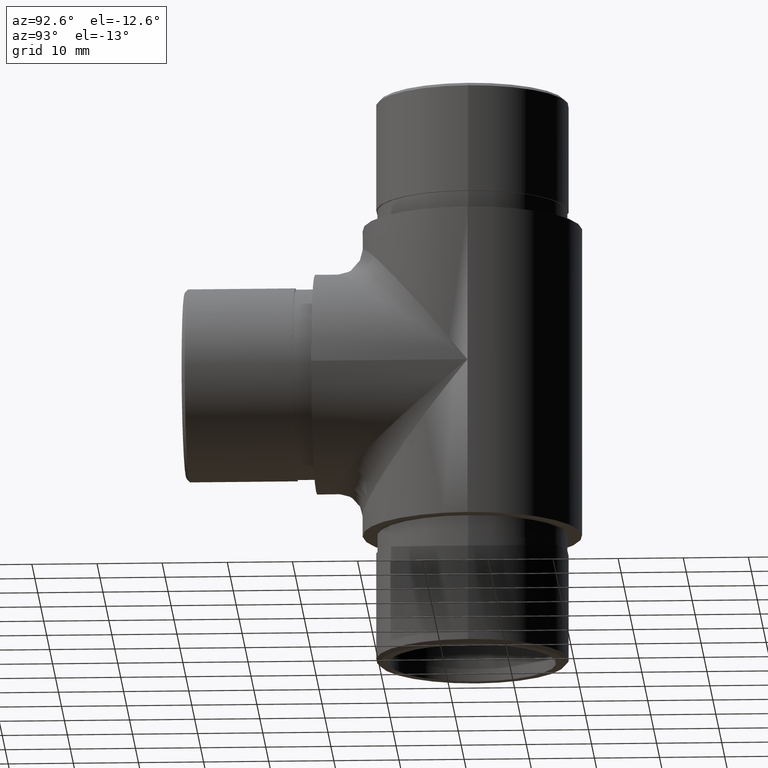
[diagram: clean part render]
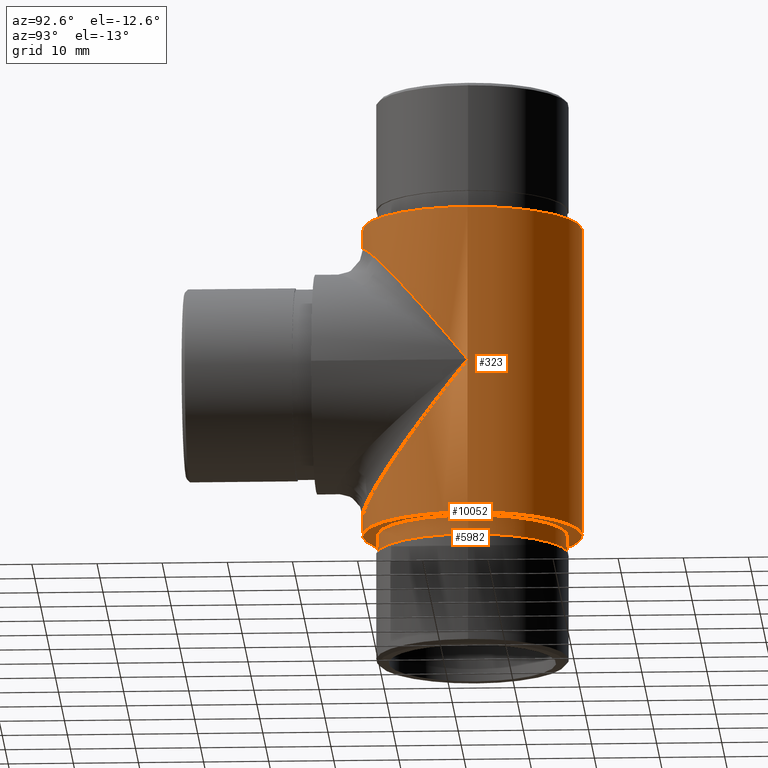
[diagram: same view with one multi-face feature highlighted, each face labeled with its STEP entity id]
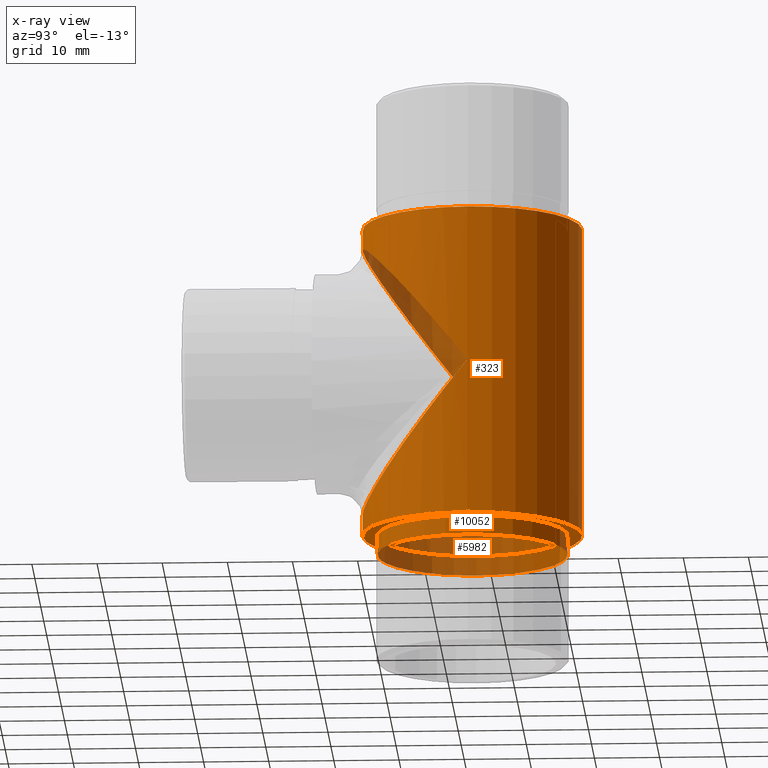
[diagram: x-ray of the same camera — body ghosted, the whole feature saturated]
A machine part, auxiliary view. The highlighted faces form ONE feature: a stepped (counterbored) hole: 2 coaxial cylindrical walls of radii 14.6 -> 16.85 mm joined by 1 annular planar shoulder face(s). The faces share edges in the B-rep.
The next image is the same camera in x-ray: the body ghosted and the whole hole feature saturated, so the bore chain is visible through the body.
Their STEP definitions:
[1] entity #323 (Cylinder):
#99 = ORIENTED_EDGE ( 'NONE', *, *, #11134, .T. ) ;
#187 = CARTESIAN_POINT ( 'NONE',  ( -16.85000000000000100, 43.99999999999136000, 0.0000000000000000000 ) ) ;
#323 = ADVANCED_FACE ( 'NONE', ( #7451, #4476, #5862 ), #8420, .T. ) ;
#703 = DIRECTION ( 'NONE',  ( 0.0000000000000000000, 0.0000000000000000000, 1.000000000000000000 ) ) ;
#1188 = CIRCLE ( 'NONE', #2130, 16.85000000000000100 ) ;
#1789 = DIRECTION ( 'NONE',  ( -1.000000000000000000, 0.0000000000000000000, 0.0000000000000000000 ) ) ;
#2130 = AXIS2_PLACEMENT_3D ( 'NONE', #8753, #703, #8865 ) ;
#2372 = EDGE_CURVE ( 'NONE', #6897, #6897, #1188, .T. ) ;
#2871 = CARTESIAN_POINT ( 'NONE',  ( 16.85000000000000500, 10.29999999999135700, -41.69999999999998200 ) ) ;
#3663 = EDGE_CURVE ( 'NONE', #6107, #8567, #8808, .T. ) ;
#3897 =( BOUNDED_CURVE ( )  B_SPLINE_CURVE ( 3, ( #6628, #2871, #5614, #187 ),
 .UNSPECIFIED., .F., .T. ) 
 B_SPLINE_CURVE_WITH_KNOTS ( ( 4, 4 ),
 ( 4.712388980384689700, 7.853981633974482800 ),
 .UNSPECIFIED. ) 
 CURVE ( )  GEOMETRIC_REPRESENTATION_ITEM ( )  RATIONAL_B_SPLINE_CURVE ( ( 1.000000000000000000, 0.3333333333333333700, 0.3333333333333333700, 1.000000000000000000 ) ) 
 REPRESENTATION_ITEM ( '' )  );
#4476 = FACE_OUTER_BOUND ( 'NONE', #8786, .T. ) ;
#4498 = CIRCLE ( 'NONE', #5370, 16.85000000000000100 ) ;
#4582 = CARTESIAN_POINT ( 'NONE',  ( 16.85000000000000100, 44.00000000000000000, 24.00000000000000000 ) ) ;
#4585 = CARTESIAN_POINT ( 'NONE',  ( 16.84999999999999100, 10.29999999999135700, 41.69999999999999600 ) ) ;
#4693 = CARTESIAN_POINT ( 'NONE',  ( 16.85000000000000100, 44.00000000000000000, -24.00000000000000000 ) ) ;
#5045 = EDGE_CURVE ( 'NONE', #8567, #6107, #3897, .T. ) ;
#5177 = ORIENTED_EDGE ( 'NONE', *, *, #5045, .T. ) ;
#5308 = VERTEX_POINT ( 'NONE', #4693 ) ;
#5370 = AXIS2_PLACEMENT_3D ( 'NONE', #9919, #10966, #6366 ) ;
#5614 = CARTESIAN_POINT ( 'NONE',  ( -16.84999999999999400, 10.29999999999135700, -41.69999999999998900 ) ) ;
#5851 = EDGE_LOOP ( 'NONE', ( #9654, #5177 ) ) ;
#5862 = FACE_BOUND ( 'NONE', #5851, .T. ) ;
#6107 = VERTEX_POINT ( 'NONE', #9093 ) ;
#6217 = AXIS2_PLACEMENT_3D ( 'NONE', #11666, #7177, #1789 ) ;
#6366 = DIRECTION ( 'NONE',  ( 1.000000000000000000, 0.0000000000000000000, 0.0000000000000000000 ) ) ;
#6628 = CARTESIAN_POINT ( 'NONE',  ( 16.85000000000000100, 43.99999999999136000, 0.0000000000000000000 ) ) ;
#6897 = VERTEX_POINT ( 'NONE', #4582 ) ;
#7177 = DIRECTION ( 'NONE',  ( -0.0000000000000000000, -0.0000000000000000000, -1.000000000000000000 ) ) ;
#7451 = FACE_OUTER_BOUND ( 'NONE', #11548, .T. ) ;
#8222 = CARTESIAN_POINT ( 'NONE',  ( -16.85000000000000100, 10.29999999999135700, 41.69999999999998900 ) ) ;
#8420 = CYLINDRICAL_SURFACE ( 'NONE', #6217, 16.85000000000000100 ) ;
#8567 = VERTEX_POINT ( 'NONE', #9434 ) ;
#8753 = CARTESIAN_POINT ( 'NONE',  ( 0.0000000000000000000, 44.00000000000000000, 24.00000000000000000 ) ) ;
#8786 = EDGE_LOOP ( 'NONE', ( #11218 ) ) ;
#8808 =( BOUNDED_CURVE ( )  B_SPLINE_CURVE ( 3, ( #9875, #8222, #4585, #10887 ),
 .UNSPECIFIED., .F., .T. ) 
 B_SPLINE_CURVE_WITH_KNOTS ( ( 4, 4 ),
 ( 1.570796326794896600, 4.712388980384689700 ),
 .UNSPECIFIED. ) 
 CURVE ( )  GEOMETRIC_REPRESENTATION_ITEM ( )  RATIONAL_B_SPLINE_CURVE ( ( 1.000000000000000000, 0.3333333333333333700, 0.3333333333333333700, 1.000000000000000000 ) ) 
 REPRESENTATION_ITEM ( '' )  );
#8865 = DIRECTION ( 'NONE',  ( 1.000000000000000000, 0.0000000000000000000, 0.0000000000000000000 ) ) ;
#9093 = CARTESIAN_POINT ( 'NONE',  ( -16.85000000000000100, 43.99999999999136000, 0.0000000000000000000 ) ) ;
#9434 = CARTESIAN_POINT ( 'NONE',  ( 16.85000000000000100, 43.99999999999136000, 0.0000000000000000000 ) ) ;
#9654 = ORIENTED_EDGE ( 'NONE', *, *, #3663, .T. ) ;
#9875 = CARTESIAN_POINT ( 'NONE',  ( -16.85000000000000100, 43.99999999999136000, 0.0000000000000000000 ) ) ;
#9919 = CARTESIAN_POINT ( 'NONE',  ( 0.0000000000000000000, 44.00000000000000000, -24.00000000000000000 ) ) ;
#10887 = CARTESIAN_POINT ( 'NONE',  ( 16.85000000000000100, 43.99999999999136000, 0.0000000000000000000 ) ) ;
#10966 = DIRECTION ( 'NONE',  ( 0.0000000000000000000, 0.0000000000000000000, 1.000000000000000000 ) ) ;
#11134 = EDGE_CURVE ( 'NONE', #5308, #5308, #4498, .T. ) ;
#11218 = ORIENTED_EDGE ( 'NONE', *, *, #2372, .F. ) ;
#11548 = EDGE_LOOP ( 'NONE', ( #99 ) ) ;
#11666 = CARTESIAN_POINT ( 'NONE',  ( 0.0000000000000000000, 44.00000000000000000, 24.00000000000000000 ) ) ;
[2] entity #5982 (Cylinder):
#240 = CARTESIAN_POINT ( 'NONE',  ( 14.60000000000000000, 44.00000000000000000, -24.00000000000000000 ) ) ;
#2165 = DIRECTION ( 'NONE',  ( 1.000000000000000000, 0.0000000000000000000, 0.0000000000000000000 ) ) ;
#2561 = CYLINDRICAL_SURFACE ( 'NONE', #9276, 14.60000000000000000 ) ;
#2783 = VERTEX_POINT ( 'NONE', #10136 ) ;
#2815 = EDGE_LOOP ( 'NONE', ( #7150 ) ) ;
#2850 = FACE_OUTER_BOUND ( 'NONE', #2815, .T. ) ;
#3124 = CARTESIAN_POINT ( 'NONE',  ( 0.0000000000000000000, 44.00000000000000000, -24.00000000000000000 ) ) ;
#3225 = EDGE_LOOP ( 'NONE', ( #6213 ) ) ;
#3459 = CARTESIAN_POINT ( 'NONE',  ( 0.0000000000000000000, 44.00000000000000000, -27.00000000000000000 ) ) ;
#5863 = VERTEX_POINT ( 'NONE', #240 ) ;
#5982 = ADVANCED_FACE ( 'NONE', ( #2850, #9184 ), #2561, .T. ) ;
#6213 = ORIENTED_EDGE ( 'NONE', *, *, #10311, .F. ) ;
#6287 = DIRECTION ( 'NONE',  ( -0.0000000000000000000, -0.0000000000000000000, 1.000000000000000000 ) ) ;
#6288 = DIRECTION ( 'NONE',  ( 1.000000000000000000, 0.0000000000000000000, 0.0000000000000000000 ) ) ;
#6597 = DIRECTION ( 'NONE',  ( -0.0000000000000000000, -0.0000000000000000000, 1.000000000000000000 ) ) ;
#7032 = DIRECTION ( 'NONE',  ( -0.0000000000000000000, -0.0000000000000000000, 1.000000000000000000 ) ) ;
#7150 = ORIENTED_EDGE ( 'NONE', *, *, #9363, .T. ) ;
#7901 = CIRCLE ( 'NONE', #8318, 14.60000000000000000 ) ;
#8318 = AXIS2_PLACEMENT_3D ( 'NONE', #3124, #6597, #2165 ) ;
#8606 = CIRCLE ( 'NONE', #10119, 14.60000000000000000 ) ;
#9184 = FACE_OUTER_BOUND ( 'NONE', #3225, .T. ) ;
#9276 = AXIS2_PLACEMENT_3D ( 'NONE', #3459, #7032, #6288 ) ;
#9363 = EDGE_CURVE ( 'NONE', #2783, #2783, #8606, .T. ) ;
#10119 = AXIS2_PLACEMENT_3D ( 'NONE', #10667, #6287, #10752 ) ;
#10136 = CARTESIAN_POINT ( 'NONE',  ( -14.60000000000000000, 44.00000000000000000, -27.00000000000000000 ) ) ;
#10311 = EDGE_CURVE ( 'NONE', #5863, #5863, #7901, .T. ) ;
#10667 = CARTESIAN_POINT ( 'NONE',  ( 0.0000000000000000000, 44.00000000000000000, -27.00000000000000000 ) ) ;
#10752 = DIRECTION ( 'NONE',  ( -1.000000000000000000, 0.0000000000000000000, 0.0000000000000000000 ) ) ;
[3] entity #10052 (Plane):
#240 = CARTESIAN_POINT ( 'NONE',  ( 14.60000000000000000, 44.00000000000000000, -24.00000000000000000 ) ) ;
#1419 = EDGE_LOOP ( 'NONE', ( #1771 ) ) ;
#1771 = ORIENTED_EDGE ( 'NONE', *, *, #10311, .T. ) ;
#2029 = AXIS2_PLACEMENT_3D ( 'NONE', #10419, #5015, #5910 ) ;
#2165 = DIRECTION ( 'NONE',  ( 1.000000000000000000, 0.0000000000000000000, 0.0000000000000000000 ) ) ;
#3124 = CARTESIAN_POINT ( 'NONE',  ( 0.0000000000000000000, 44.00000000000000000, -24.00000000000000000 ) ) ;
#4498 = CIRCLE ( 'NONE', #5370, 16.85000000000000100 ) ;
#4693 = CARTESIAN_POINT ( 'NONE',  ( 16.85000000000000100, 44.00000000000000000, -24.00000000000000000 ) ) ;
#4940 = PLANE ( 'NONE',  #2029 ) ;
#5015 = DIRECTION ( 'NONE',  ( 0.0000000000000000000, 0.0000000000000000000, 1.000000000000000000 ) ) ;
#5080 = EDGE_LOOP ( 'NONE', ( #5580 ) ) ;
#5308 = VERTEX_POINT ( 'NONE', #4693 ) ;
#5370 = AXIS2_PLACEMENT_3D ( 'NONE', #9919, #10966, #6366 ) ;
#5580 = ORIENTED_EDGE ( 'NONE', *, *, #11134, .F. ) ;
#5863 = VERTEX_POINT ( 'NONE', #240 ) ;
#5910 = DIRECTION ( 'NONE',  ( 1.000000000000000000, 0.0000000000000000000, -0.0000000000000000000 ) ) ;
#6366 = DIRECTION ( 'NONE',  ( 1.000000000000000000, 0.0000000000000000000, 0.0000000000000000000 ) ) ;
#6597 = DIRECTION ( 'NONE',  ( -0.0000000000000000000, -0.0000000000000000000, 1.000000000000000000 ) ) ;
#7901 = CIRCLE ( 'NONE', #8318, 14.60000000000000000 ) ;
#8318 = AXIS2_PLACEMENT_3D ( 'NONE', #3124, #6597, #2165 ) ;
#9590 = FACE_OUTER_BOUND ( 'NONE', #5080, .T. ) ;
#9919 = CARTESIAN_POINT ( 'NONE',  ( 0.0000000000000000000, 44.00000000000000000, -24.00000000000000000 ) ) ;
#10052 = ADVANCED_FACE ( 'NONE', ( #11684, #9590 ), #4940, .F. ) ;
#10311 = EDGE_CURVE ( 'NONE', #5863, #5863, #7901, .T. ) ;
#10419 = CARTESIAN_POINT ( 'NONE',  ( 0.0000000000000000000, 44.00000000000000000, -24.00000000000000000 ) ) ;
#10966 = DIRECTION ( 'NONE',  ( 0.0000000000000000000, 0.0000000000000000000, 1.000000000000000000 ) ) ;
#11134 = EDGE_CURVE ( 'NONE', #5308, #5308, #4498, .T. ) ;
#11684 = FACE_BOUND ( 'NONE', #1419, .T. ) ;